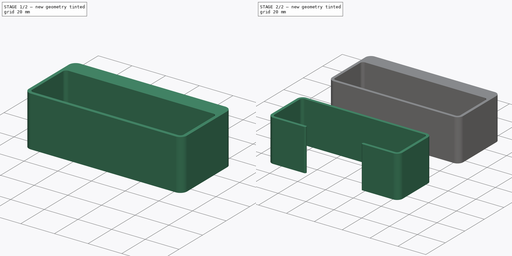
[diagram: build sequence overview — one tinted view per stage of 2, left to right]
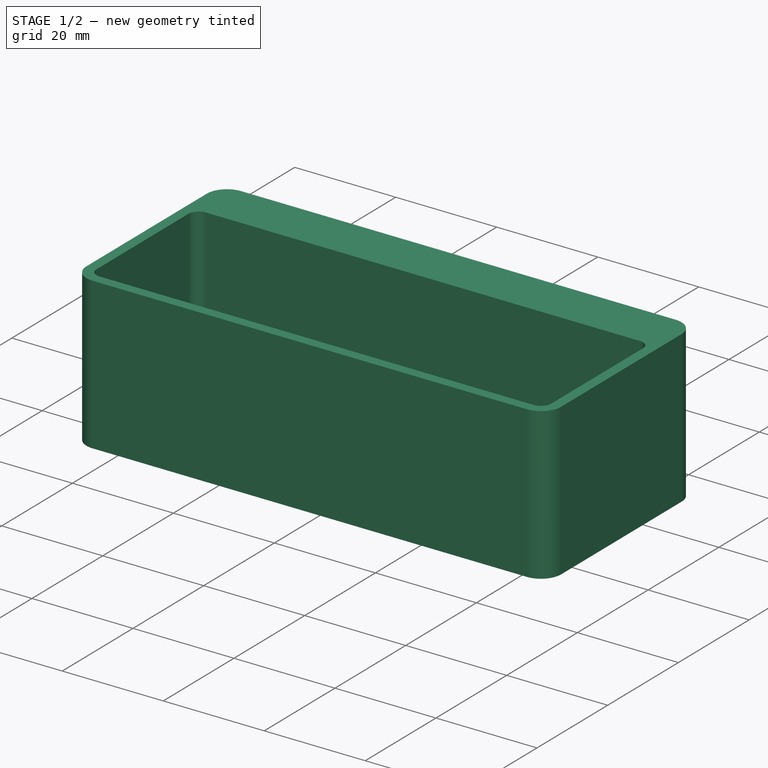
[diagram: stage 1 of 2 — iso view after this stage's code; geometry added in this stage tinted green]
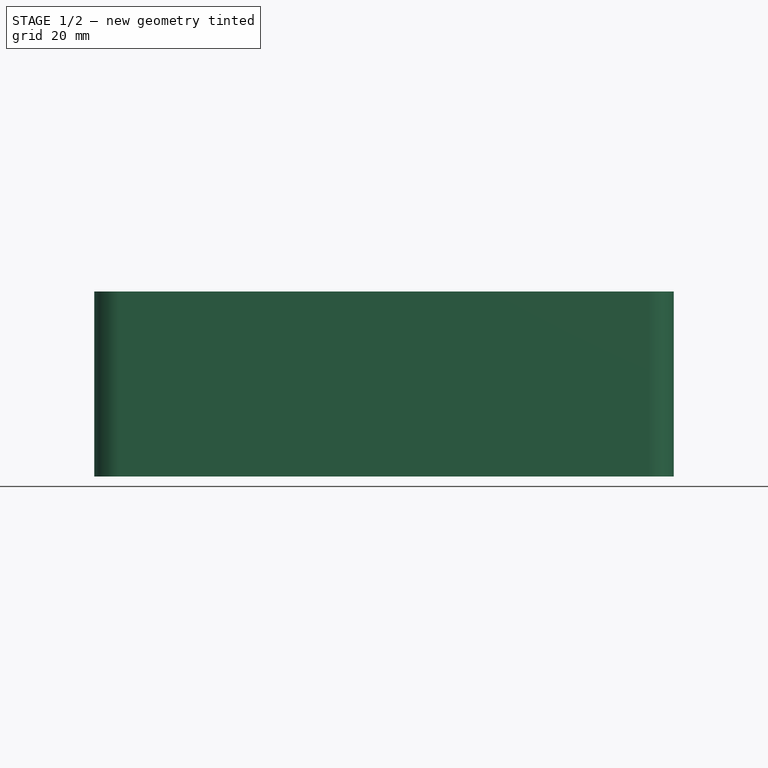
[diagram: stage 1 of 2 — front view after this stage's code; geometry added in this stage tinted green]
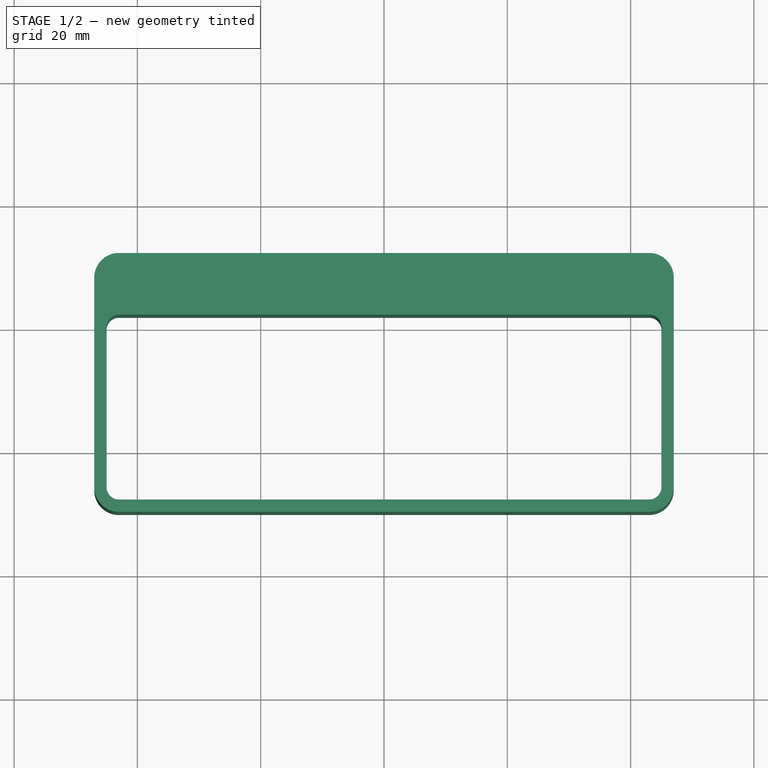
[diagram: stage 1 of 2 — top view after this stage's code; geometry added in this stage tinted green]
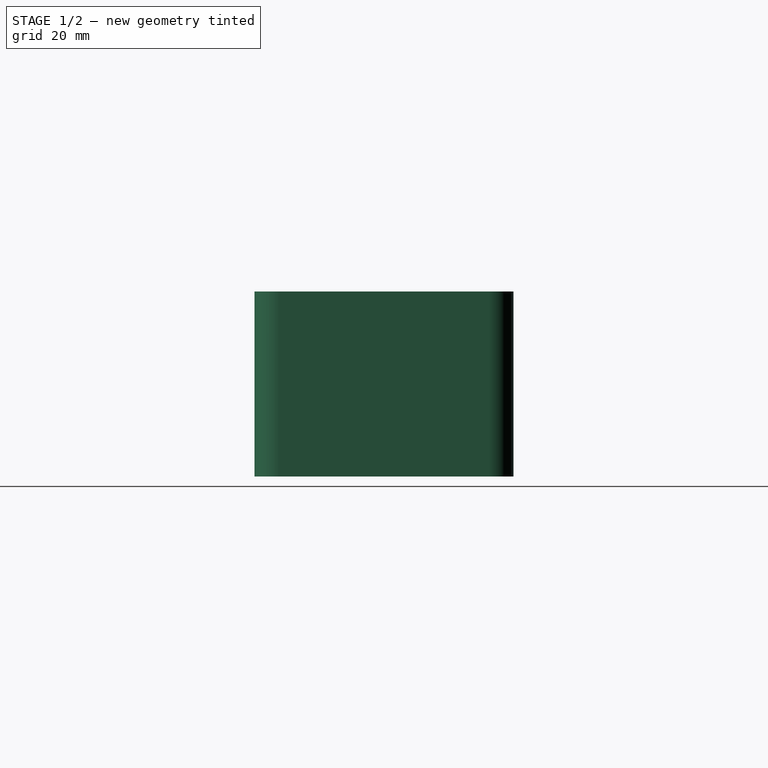
[diagram: stage 1 of 2 — right view after this stage's code; geometry added in this stage tinted green]
FCSTD DOCUMENT  (FreeCAD 0.20R29177 (Git))
Label: Power Supply Holder
License: All rights reserved
LicenseURL: http://en.wikipedia.org/wiki/All_rights_reserved
objects: Sketcher::SketchObject×2, PartDesign::Pad×2, PartDesign::Body×2, App::Part×2, Spreadsheet::Sheet×1
note: 8 computed .brp shape members not serialized (recipe doc carries the construction recipe); baked Part::Feature solids carry a one-line shape summary decoded from their .brp

FEATURE [PartDesign::Body] Body  label="Open"
  Group = -> [Sketch,Pad]
  Origin = -> Origin
  Tip = -> Pad
FEATURE [App::Part] Part  label="Open001"
  Group = -> [Body]
  Origin = -> Origin001
FEATURE [Sketcher::SketchObject] Sketch001
  FullyConstrained = true
  MapMode = 5
  Support = -> [XY_Plane]
  expr: Constraints[17] = Spreadsheet.height
  expr: Constraints[18] = Spreadsheet.wall_thickness
  expr: Constraints[27] = Spreadsheet.length
  expr: Constraints[35] = Spreadsheet.wall_thickness
  expr: Constraints[37] = Spreadsheet.length / 2
  expr: Constraints[51] = Spreadsheet.wall_thickness
  expr: Constraints[55] = Spreadsheet.wall_thickness * 2
  expr: Constraints[56] = Spreadsheet.wall_thickness * 2
  expr: Constraints[57] = max(Spreadsheet.base_height; Spreadsheet.wall_thickness)
  sketch-geometry (16):
    g0: ArcOfCircle CenterX=-43 CenterY=60 CenterZ=0 NormalX=0 NormalY=0 NormalZ=1 AngleXU=0 Radius=2 StartAngle=1.5708 EndAngle=3.14159
    g1: LineSegment StartX=-45 StartY=60 StartZ=0 EndX=-45 EndY=34 EndZ=0
    g2: ArcOfCircle CenterX=-43 CenterY=34 CenterZ=0 NormalX=0 NormalY=0 NormalZ=1 AngleXU=0 Radius=2 StartAngle=3.14159 EndAngle=4.71239
    g3: ArcOfCircle CenterX=-43 CenterY=34 CenterZ=0 NormalX=0 NormalY=0 NormalZ=1 AngleXU=0 Radius=4 StartAngle=3.14159 EndAngle=4.71239
    g4: LineSegment StartX=-47 StartY=34 StartZ=0 EndX=-47 EndY=68 EndZ=0
    g5: ArcOfCircle CenterX=-43 CenterY=68 CenterZ=0 NormalX=0 NormalY=0 NormalZ=1 AngleXU=0 Radius=4 StartAngle=1.5708 EndAngle=3.1416
    g6: ArcOfCircle CenterX=43 CenterY=60 CenterZ=0 NormalX=0 NormalY=0 NormalZ=1 AngleXU=0 Radius=2 StartAngle=0 EndAngle=1.5708
    g7: LineSegment StartX=45 StartY=60 StartZ=0 EndX=45 EndY=34 EndZ=0
    g8: ArcOfCircle CenterX=43 CenterY=34 CenterZ=0 NormalX=0 NormalY=0 NormalZ=1 AngleXU=0 Radius=2 StartAngle=4.71239 EndAngle=6.28319
    g9: ArcOfCircle CenterX=43 CenterY=34 CenterZ=0 NormalX=0 NormalY=0 NormalZ=1 AngleXU=0 Radius=4 StartAngle=4.71239 EndAngle=6.28319
    g10: LineSegment StartX=47 StartY=34 StartZ=0 EndX=47 EndY=68 EndZ=0
    g11: ArcOfCircle CenterX=43 CenterY=68 CenterZ=0 NormalX=0 NormalY=0 NormalZ=1 AngleXU=0 Radius=4 StartAngle=6.28318 EndAngle=7.85398
    g12: LineSegment StartX=-43 StartY=72 StartZ=0 EndX=43 EndY=72 EndZ=0
    g13: LineSegment StartX=-43 StartY=62 StartZ=0 EndX=43 EndY=62 EndZ=0
    g14: LineSegment StartX=-43 StartY=32 StartZ=0 EndX=43 EndY=32 EndZ=0
    g15: LineSegment StartX=-43 StartY=30 StartZ=0 EndX=43 EndY=30 EndZ=0
  constraints (58):
    c: Coincident(g1,g0)
    c: Vertical(g1)
    c: Coincident(g2,g1)
    c: Coincident(g3,g2)
    c: Coincident(g4,g3)
    c: Vertical(g4)
    c: Coincident(g5,g0)
    c: Coincident(g5,g4)
    c: Vertical(g0,g0)
    c: Vertical(g0,g5)
    c: Horizontal(g0,g0)
    c: Horizontal(g0,g4)
    c: Horizontal(g2,g1)
    c: Horizontal(g2,g3)
    c: Vertical(g2,g2)
    c: Vertical(g2,g3)
    c: Vertical(g0,g2)
    c: DistanceY(g2,g0) = 30
    c: Radius(g2) = 2
    c: Coincident(g7,g6)
    c: Vertical(g7)
    c: Coincident(g8,g7)
    c: Coincident(g9,g8)
    c: Coincident(g10,g9)
    c: Vertical(g10)
    c: Coincident(g11,g6)
    c: Coincident(g11,g10)
    c: DistanceX(g5,g11) = 86
    c: Vertical(g6,g6)
    c: Vertical(g6,g11)
    c: Vertical(g9,g8)
    c: Horizontal(g6,g6)
    c: Horizontal(g6,g10)
    c: Horizontal(g8,g7)
    c: Horizontal(g8,g9)
    c: Radius(g8) = 2
    c: Vertical(g6,g8)
    c: DistanceX(g0,g-1) = 43
    c: Horizontal(g8,g2)
    c: Horizontal(g12)
    c: Coincident(g12,g5)
    c: Coincident(g11,g12)
    c: Horizontal(g13)
    c: Coincident(g13,g0)
    c: Coincident(g13,g6)
    c: Coincident(g14,g2)
    c: Coincident(g15,g3)
    c: Coincident(g15,g9)
    c: Coincident(g14,g8)
    c: Horizontal(g2,g8)
    c: DistanceY(g9) = 30
    c: DistanceX(g4,g0) = 2
    c: Horizontal(g15)
    c: Vertical(g5,g0)
    c: Vertical(g6,g11)
    c: Radius(g5) = 4
    c: Radius(g11) = 4
    c: DistanceY(g0,g5) = 10
FEATURE [PartDesign::Pad] Pad001
  Direction = (0,0,1)
  Length = 30
  Length2 = 10
  Profile = -> Sketch001
  ReferenceAxis = -> Sketch001 [N_Axis]
  Type = 0
  expr: Length = Spreadsheet.width
FEATURE [PartDesign::Body] Body001  label="Closed"
  Group = -> [Sketch001,Pad001]
  Origin = -> Origin002
  Tip = -> Pad001
FEATURE [App::Part] Part001  label="Closed001"
  Group = -> [Body001]
  Origin = -> Origin003
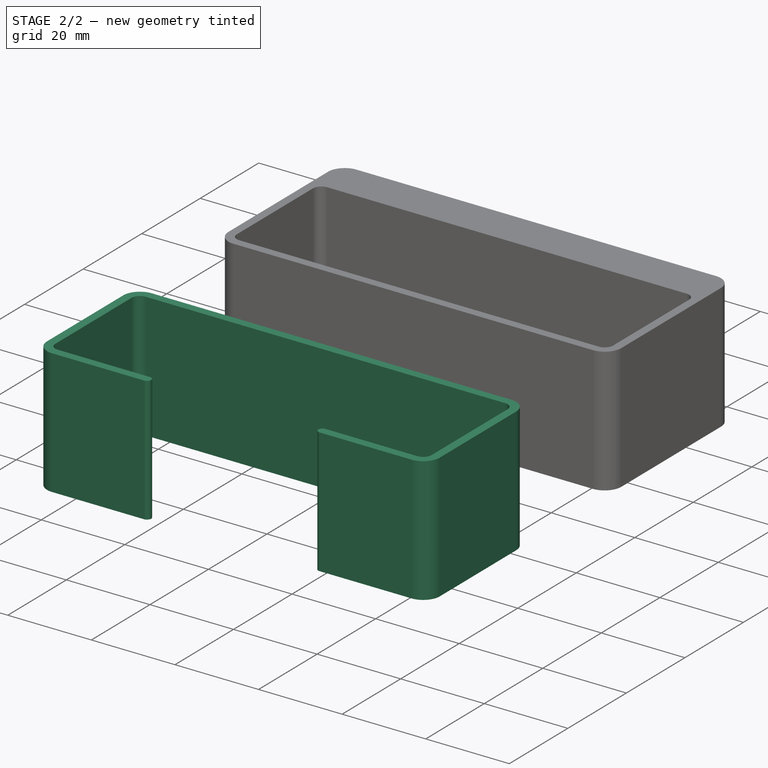
[diagram: stage 2 of 2 — iso view after this stage's code; geometry added in this stage tinted green]
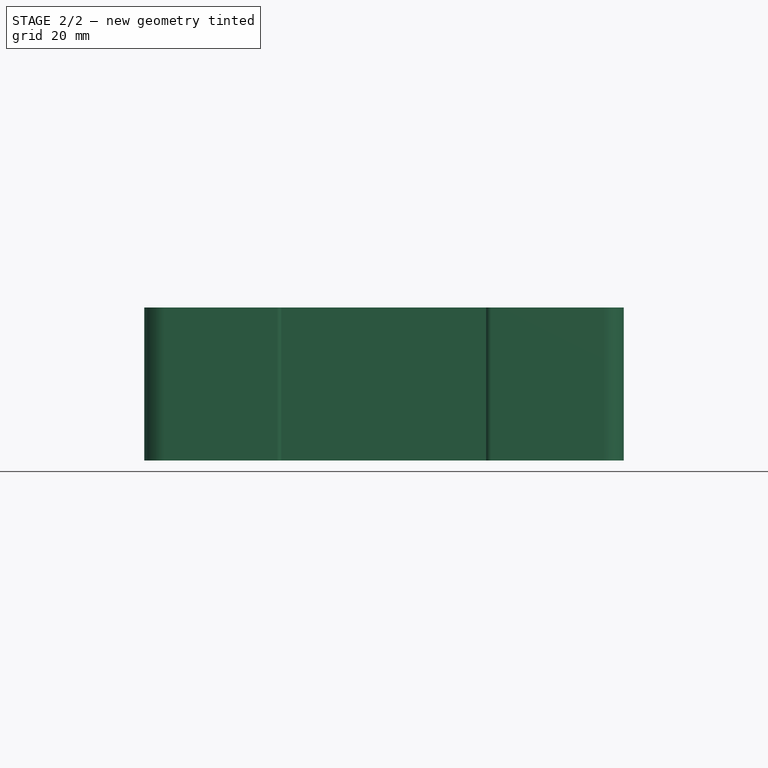
[diagram: stage 2 of 2 — front view after this stage's code; geometry added in this stage tinted green]
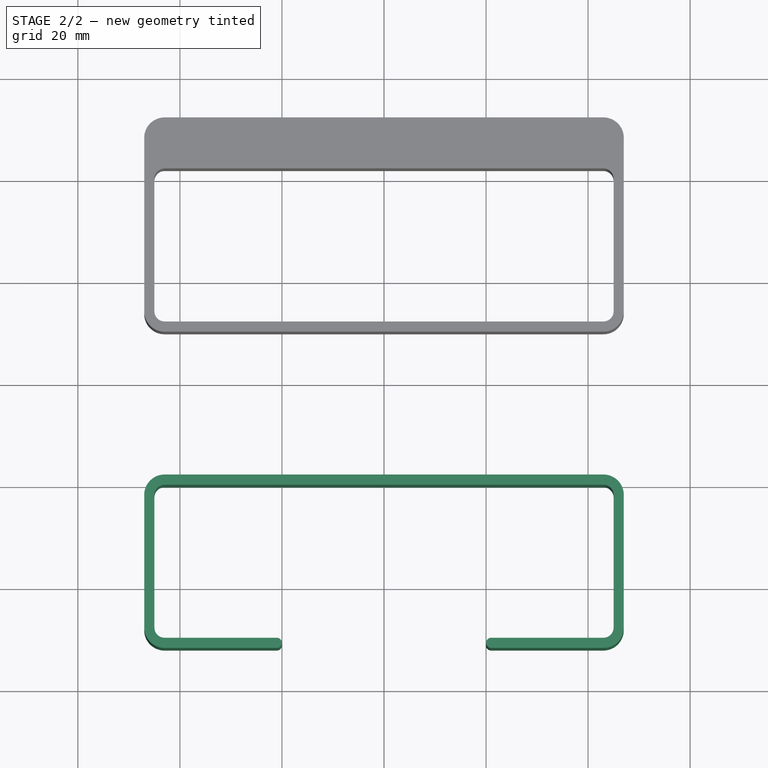
[diagram: stage 2 of 2 — top view after this stage's code; geometry added in this stage tinted green]
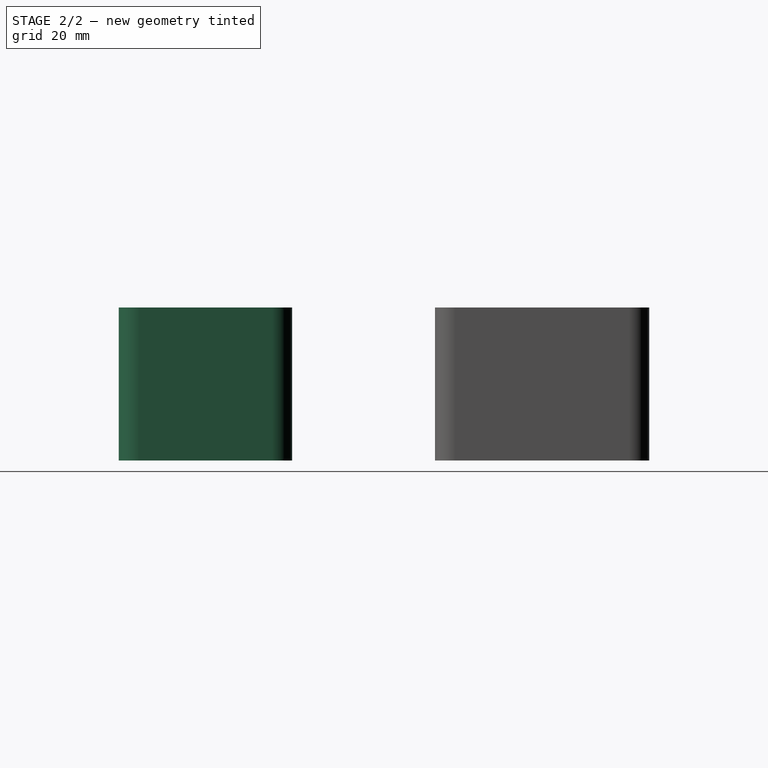
[diagram: stage 2 of 2 — right view after this stage's code; geometry added in this stage tinted green]
FEATURE [Sketcher::SketchObject] Sketch
  FullyConstrained = true
  MapMode = 5
  Support = -> [XY_Plane]
  expr: Constraints[15] = Spreadsheet.wall_thickness / 2
  expr: Constraints[26] = Spreadsheet.height
  expr: Constraints[27] = Spreadsheet.wall_thickness
  expr: Constraints[28] = Spreadsheet.grip_length
  expr: Constraints[44] = Spreadsheet.length
  expr: Constraints[53] = Spreadsheet.grip_length
  expr: Constraints[54] = Spreadsheet.height
  expr: Constraints[55] = Spreadsheet.wall_thickness
  expr: Constraints[56] = Spreadsheet.wall_thickness / 2
  expr: Constraints[58] = Spreadsheet.length / 2
  sketch-geometry (20):
    g0: ArcOfCircle CenterX=-43 CenterY=-2 CenterZ=0 NormalX=0 NormalY=0 NormalZ=1 AngleXU=0 Radius=2 StartAngle=1.5708 EndAngle=3.14159
    g1: LineSegment StartX=-45 StartY=-2 StartZ=0 EndX=-45 EndY=-28 EndZ=0
    g2: ArcOfCircle CenterX=-43 CenterY=-28 CenterZ=0 NormalX=0 NormalY=0 NormalZ=1 AngleXU=0 Radius=2 StartAngle=3.14159 EndAngle=4.71239
    g3: LineSegment StartX=-43 StartY=-30 StartZ=0 EndX=-21 EndY=-30 EndZ=0
    g4: ArcOfCircle CenterX=-21 CenterY=-31 CenterZ=0 NormalX=0 NormalY=0 NormalZ=1 AngleXU=0 Radius=1 StartAngle=4.71239 EndAngle=7.85398
    g5: LineSegment StartX=-21 StartY=-32 StartZ=0 EndX=-43 EndY=-32 EndZ=0
    g6: ArcOfCircle CenterX=-43 CenterY=-28 CenterZ=0 NormalX=0 NormalY=0 NormalZ=1 AngleXU=0 Radius=4 StartAngle=3.14159 EndAngle=4.71239
    g7: LineSegment StartX=-47 StartY=-28 StartZ=0 EndX=-47 EndY=-2 EndZ=0
    g8: ArcOfCircle CenterX=-43 CenterY=-2 CenterZ=0 NormalX=0 NormalY=0 NormalZ=1 AngleXU=0 Radius=4 StartAngle=1.5708 EndAngle=3.14159
    g9: ArcOfCircle CenterX=43 CenterY=-2 CenterZ=0 NormalX=0 NormalY=0 NormalZ=1 AngleXU=0 Radius=2 StartAngle=0 EndAngle=1.5708
    g10: LineSegment StartX=45 StartY=-2 StartZ=0 EndX=45 EndY=-28 EndZ=0
    g11: ArcOfCircle CenterX=43 CenterY=-28 CenterZ=0 NormalX=0 NormalY=0 NormalZ=1 AngleXU=0 Radius=2 StartAngle=4.71238 EndAngle=6.28319
    g12: LineSegment StartX=43 StartY=-30 StartZ=0 EndX=21 EndY=-30 EndZ=0
    g13: ArcOfCircle CenterX=21 CenterY=-31 CenterZ=0 NormalX=0 NormalY=0 NormalZ=1 AngleXU=0 Radius=1 StartAngle=1.57079 EndAngle=4.7124
    g14: LineSegment StartX=21 StartY=-32 StartZ=0 EndX=43 EndY=-32 EndZ=0
    g15: ArcOfCircle CenterX=43 CenterY=-28 CenterZ=0 NormalX=0 NormalY=0 NormalZ=1 AngleXU=0 Radius=4 StartAngle=4.71239 EndAngle=6.28319
    g16: LineSegment StartX=47 StartY=-28 StartZ=0 EndX=47 EndY=-2 EndZ=0
    g17: ArcOfCircle CenterX=43 CenterY=-2 CenterZ=0 NormalX=0 NormalY=0 NormalZ=1 AngleXU=0 Radius=4 StartAngle=0 EndAngle=1.5708
    g18: LineSegment StartX=-43 StartY=2 StartZ=0 EndX=43 EndY=2 EndZ=0
    g19: LineSegment StartX=-43 StartY=0 StartZ=0 EndX=43 EndY=0 EndZ=0
  constraints (66):
    c: PointOnObject(g0,g-1)
    c: Coincident(g1,g0)
    c: Vertical(g1)
    c: Coincident(g2,g1)
    c: Coincident(g3,g2)
    c: Horizontal(g3)
    c: Coincident(g4,g3)
    c: Coincident(g5,g4)
    c: Horizontal(g5)
    c: Coincident(g6,g2)
    c: Coincident(g6,g5)
    c: Coincident(g7,g6)
    c: Vertical(g7)
    c: Coincident(g8,g0)
    c: Coincident(g8,g7)
    c: Radius(g4) = 1
    c: Vertical(g0,g0)
    c: Vertical(g0,g8)
    c: Horizontal(g0,g0)
    c: Horizontal(g0,g7)
    c: Horizontal(g2,g1)
    c: Horizontal(g2,g6)
    c: Vertical(g2,g2)
    c: Vertical(g2,g5)
    c: Vertical(g0,g2)
    c: Vertical(g4,g3)
    c: DistanceY(g2,g0) = 30
    c: Radius(g2) = 2
    c: DistanceX(g5,g4) = 22
    c: Vertical(g4,g4)
    c: Coincident(g10,g9)
    c: Vertical(g10)
    c: Coincident(g11,g10)
    c: Coincident(g12,g11)
    c: Horizontal(g12)
    c: Coincident(g13,g12)
    c: Coincident(g14,g13)
    c: Horizontal(g14)
    c: Coincident(g15,g11)
    c: Coincident(g15,g14)
    c: Coincident(g16,g15)
    c: Vertical(g16)
    c: Coincident(g17,g9)
    c: Coincident(g17,g16)
    c: DistanceX(g8,g17) = 86
    c: Vertical(g9,g9)
    c: Vertical(g9,g17)
    c: Vertical(g13,g12)
    c: Vertical(g14,g11)
    c: Horizontal(g9,g9)
    c: Horizontal(g9,g16)
    c: Horizontal(g11,g10)
    c: Horizontal(g11,g15)
    c: DistanceX(g13,g14) = 22
    c: DistanceY(g11,g9) = 30
    c: Radius(g11) = 2
    c: Radius(g13) = 1
    c: Vertical(g9,g11)
    c: DistanceX(g0,g-1) = 43
    c: Horizontal(g11,g2)
    c: Horizontal(g18)
    c: Coincident(g18,g8)
    c: Coincident(g17,g18)
    c: Horizontal(g19)
    c: Coincident(g19,g0)
    c: Coincident(g19,g9)
FEATURE [Spreadsheet::Sheet] Spreadsheet
  cells = A1=length; B1(length)=86; A2=height; B2(height)=30; A3=width; B3(width)=30; A4=grip_length; B4(grip_length)=22; A5=wall_thickness; B5(wall_thickness)=2; A6=base_height; B6(base_height)=10
FEATURE [PartDesign::Pad] Pad
  Direction = (0,0,1)
  Length = 30
  Length2 = 10
  Profile = -> Sketch
  ReferenceAxis = -> Sketch [N_Axis]
  Type = 0
  expr: Length = Spreadsheet.width
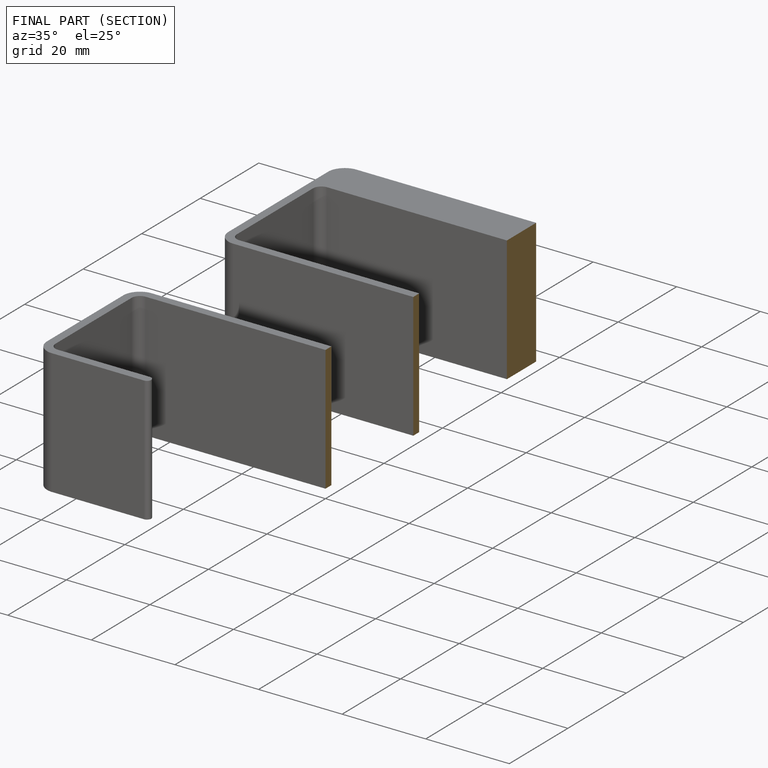
[diagram: finished part — half-section view (interior)]
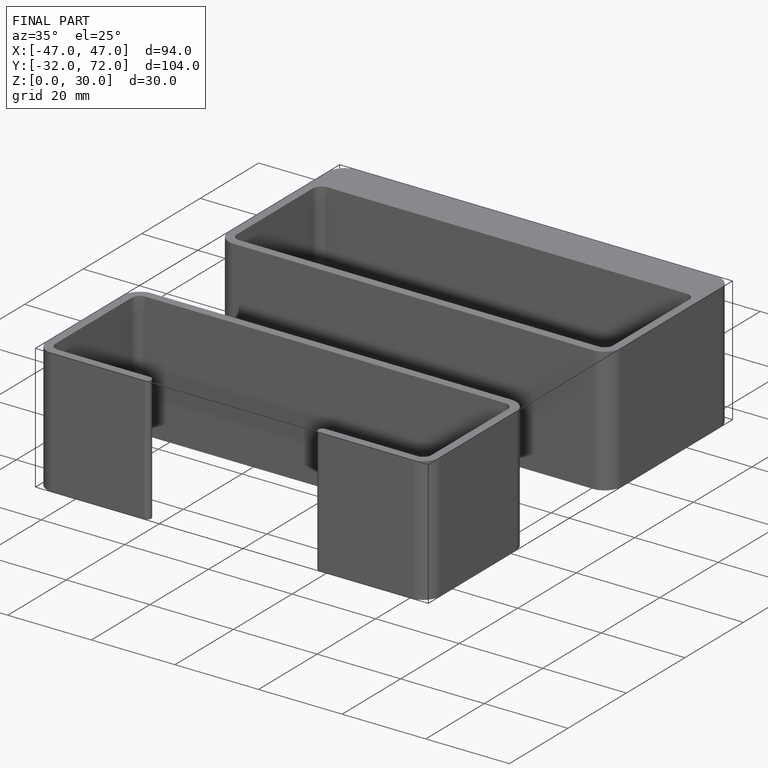
[diagram: finished part — iso view with bounding-box wireframe]
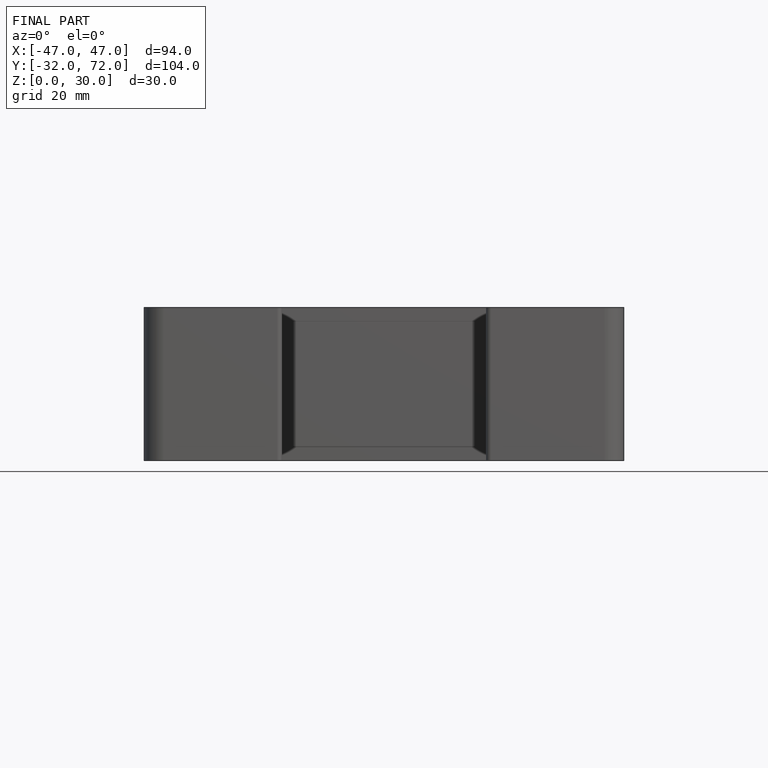
[diagram: finished part — front view with bounding-box wireframe]
